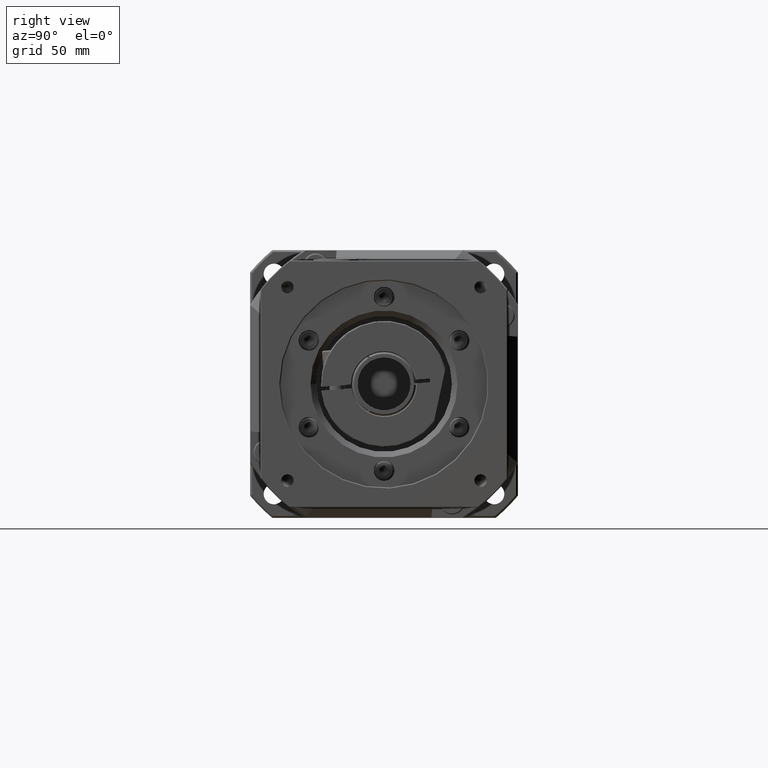
[diagram: clean part render]
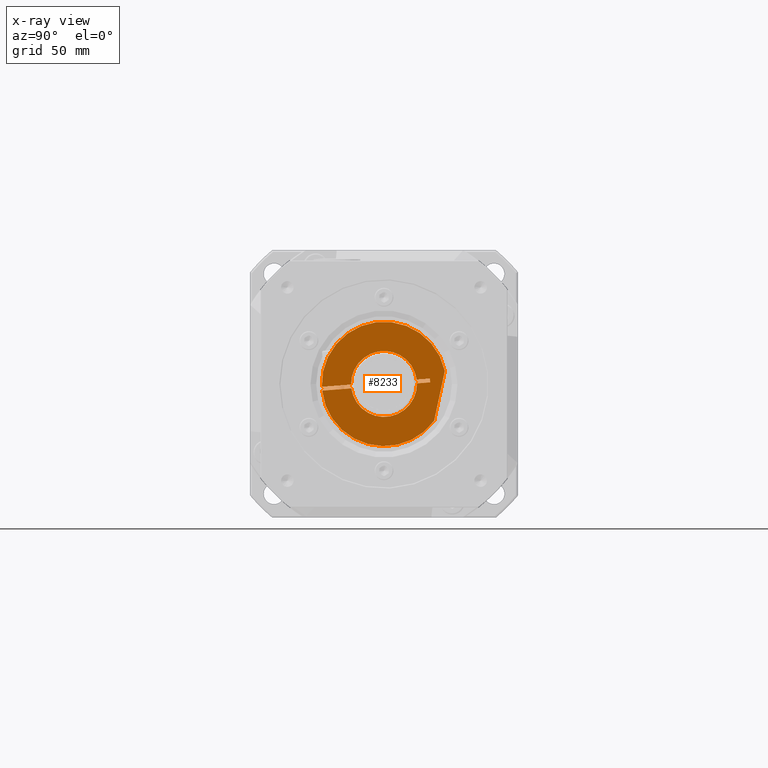
[diagram: x-ray — body ghosted, one internal face saturated and labeled with its STEP entity id]
A machine part, right view, then the same camera in x-ray: the body is ghosted and one INTERNAL B-rep face — a face not visible from any outside direction — is saturated and labeled: STEP entity #8233.
In plain terms, the highlighted planar face has unit normal (1, -0, -0).
Its self-contained STEP definition (entity closure, byte-faithful):
#596=LINE('',#14881,#983);
#607=LINE('',#14926,#994);
#615=LINE('',#14941,#1002);
#619=LINE('',#14949,#1006);
#622=LINE('',#14955,#1009);
#631=LINE('',#14972,#1018);
#983=VECTOR('',#11215,27.0547592855674);
#994=VECTOR('',#11250,2.);
#1002=VECTOR('',#11260,15.5134397952851);
#1006=VECTOR('',#11266,7.02859479034386);
#1009=VECTOR('',#11271,15.5134397952851);
#1018=VECTOR('',#11282,7.02859479034387);
#1441=PLANE('',#9151);
#2236=FACE_OUTER_BOUND('',#3040,.T.);
#3040=EDGE_LOOP('',(#7035,#7036,#7037,#7038,#7039,#7040,#7041,#7042,#7043,
#7044));
#3408=CIRCLE('',#9143,33.);
#3410=CIRCLE('',#9152,33.);
#3411=CIRCLE('',#9153,17.5);
#3412=CIRCLE('',#9154,17.5);
#4107=VERTEX_POINT('',#14876);
#4108=VERTEX_POINT('',#14880);
#4122=VERTEX_POINT('',#14920);
#4123=VERTEX_POINT('',#14924);
#4124=VERTEX_POINT('',#14925);
#4129=VERTEX_POINT('',#14938);
#4130=VERTEX_POINT('',#14940);
#4133=VERTEX_POINT('',#14948);
#4135=VERTEX_POINT('',#14954);
#4142=VERTEX_POINT('',#14970);
#5073=EDGE_CURVE('',#4108,#4107,#596,.T.);
#5091=EDGE_CURVE('',#4108,#4122,#3408,.T.);
#5093=EDGE_CURVE('',#4123,#4124,#607,.T.);
#5101=EDGE_CURVE('',#4130,#4129,#615,.T.);
#5105=EDGE_CURVE('',#4133,#4123,#619,.T.);
#5108=EDGE_CURVE('',#4135,#4122,#622,.T.);
#5117=EDGE_CURVE('',#4124,#4142,#631,.T.);
#5119=EDGE_CURVE('',#4130,#4107,#3410,.T.);
#5120=EDGE_CURVE('',#4133,#4129,#3411,.T.);
#5121=EDGE_CURVE('',#4135,#4142,#3412,.T.);
#7035=ORIENTED_EDGE('',*,*,#5073,.T.);
#7036=ORIENTED_EDGE('',*,*,#5119,.F.);
#7037=ORIENTED_EDGE('',*,*,#5101,.T.);
#7038=ORIENTED_EDGE('',*,*,#5120,.F.);
#7039=ORIENTED_EDGE('',*,*,#5105,.T.);
#7040=ORIENTED_EDGE('',*,*,#5093,.T.);
#7041=ORIENTED_EDGE('',*,*,#5117,.T.);
#7042=ORIENTED_EDGE('',*,*,#5121,.F.);
#7043=ORIENTED_EDGE('',*,*,#5108,.T.);
#7044=ORIENTED_EDGE('',*,*,#5091,.F.);
#8233=ADVANCED_FACE('',(#2236),#1441,.F.);
#9143=AXIS2_PLACEMENT_3D('',#14921,#11245,#11246);
#9151=AXIS2_PLACEMENT_3D('',#14975,#11287,#11288);
#9152=AXIS2_PLACEMENT_3D('',#14976,#11289,#11290);
#9153=AXIS2_PLACEMENT_3D('',#14977,#11291,#11292);
#9154=AXIS2_PLACEMENT_3D('',#14978,#11293,#11294);
#11215=DIRECTION('',(-1.84560540250853E-15,-0.209946629518594,-0.977712847800305));
#11245=DIRECTION('center_axis',(1.,-2.28613590755804E-15,-1.3967688745911E-15));
#11246=DIRECTION('ref_axis',(2.38614828337687E-15,0.997078437857265,0.0763844798379683));
#11250=DIRECTION('',(1.21806282538722E-15,-0.0763844798379682,0.997078437857265));
#11260=DIRECTION('',(2.38614828337687E-15,0.997078437857265,0.0763844798379684));
#11266=DIRECTION('',(2.38614828337687E-15,0.997078437857265,0.0763844798379684));
#11271=DIRECTION('',(-2.38614828337687E-15,-0.997078437857265,-0.0763844798379684));
#11282=DIRECTION('',(-2.38614828337687E-15,-0.997078437857265,-0.0763844798379684));
#11287=DIRECTION('center_axis',(1.,-2.28613590755804E-15,-1.3967688745911E-15));
#11288=DIRECTION('ref_axis',(1.4210854715202E-15,-0.0763844798379694,0.997078437857265));
#11289=DIRECTION('center_axis',(1.,-2.28613590755804E-15,-1.3967688745911E-15));
#11290=DIRECTION('ref_axis',(2.38614828337687E-15,0.997078437857265,0.0763844798379683));
#11291=DIRECTION('center_axis',(-1.,2.28613590755804E-15,1.3967688745911E-15));
#11292=DIRECTION('ref_axis',(2.38614828337687E-15,0.997078437857265,0.0763844798379682));
#11293=DIRECTION('center_axis',(-1.,2.28613590755804E-15,1.3967688745911E-15));
#11294=DIRECTION('ref_axis',(2.38614828337687E-15,0.997078437857265,0.0763844798379682));
#14876=CARTESIAN_POINT('',(-54.5593852728365,-123.720875639611,-96.547812415264));
#14880=CARTESIAN_POINT('',(-54.5593852728364,-118.040820115169,-70.0960266676201));
#14881=CARTESIAN_POINT('',(-54.5593852728365,-122.424491089577,-90.510602705518));
#14920=CARTESIAN_POINT('',(-54.5593852728366,-183.274866806508,-78.5249777833136));
#14921=CARTESIAN_POINT('Origin',(-54.5593852728365,-150.310004596179,-77.0025259929324));
#14924=CARTESIAN_POINT('',(-54.5593852728365,-125.805198388838,-76.1281846747594));
#14925=CARTESIAN_POINT('',(-54.5593852728365,-125.957967348514,-74.1340277990449));
#14926=CARTESIAN_POINT('',(-54.5593852728365,-125.919775108595,-74.6325670179735));
#14938=CARTESIAN_POINT('',(-54.5593852728366,-167.653981529957,-79.3341486297676));
#14940=CARTESIAN_POINT('',(-54.5593852728366,-183.122097846832,-80.5191346590281));
#14941=CARTESIAN_POINT('',(-54.5593852728365,-138.01940925259,-77.0638945527745));
#14948=CARTESIAN_POINT('',(-54.5593852728365,-132.813258702726,-76.6650602318117));
#14949=CARTESIAN_POINT('',(-54.5593852728365,-138.01940925259,-77.0638945527745));
#14954=CARTESIAN_POINT('',(-54.5593852728366,-167.806750489633,-77.3399917540531));
#14955=CARTESIAN_POINT('',(-54.5593852728366,-171.579351288236,-77.6290042717211));
#14970=CARTESIAN_POINT('',(-54.5593852728365,-132.966027662402,-74.6709033560972));
#14972=CARTESIAN_POINT('',(-54.5593852728366,-171.579351288236,-77.6290042717211));
#14975=CARTESIAN_POINT('Origin',(-54.5593852728365,-150.310004596179,-77.0025259929324));
#14976=CARTESIAN_POINT('Origin',(-54.5593852728365,-150.310004596179,-77.0025259929324));
#14977=CARTESIAN_POINT('Origin',(-54.5593852728365,-150.310004596179,-77.0025259929324));
#14978=CARTESIAN_POINT('Origin',(-54.5593852728365,-150.310004596179,-77.0025259929324));